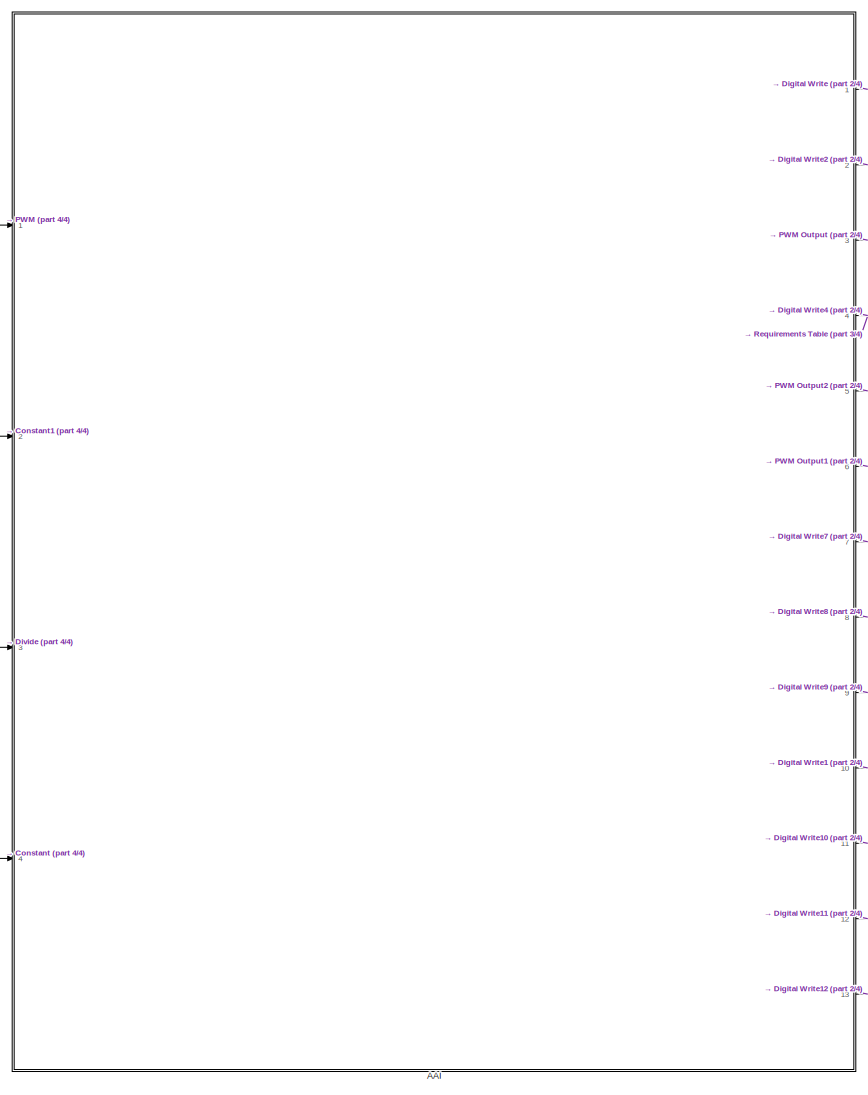
[diagram: root canvas - part 1/4, left side, full height]
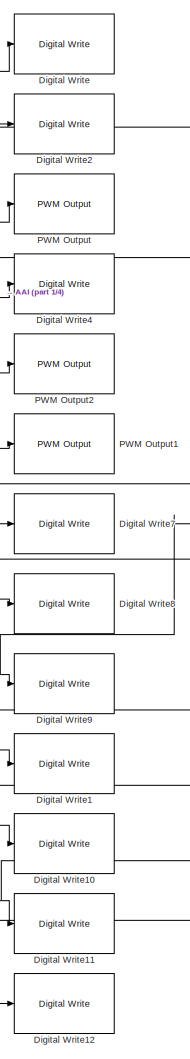
[diagram: root canvas - part 2/4, center side, full height]
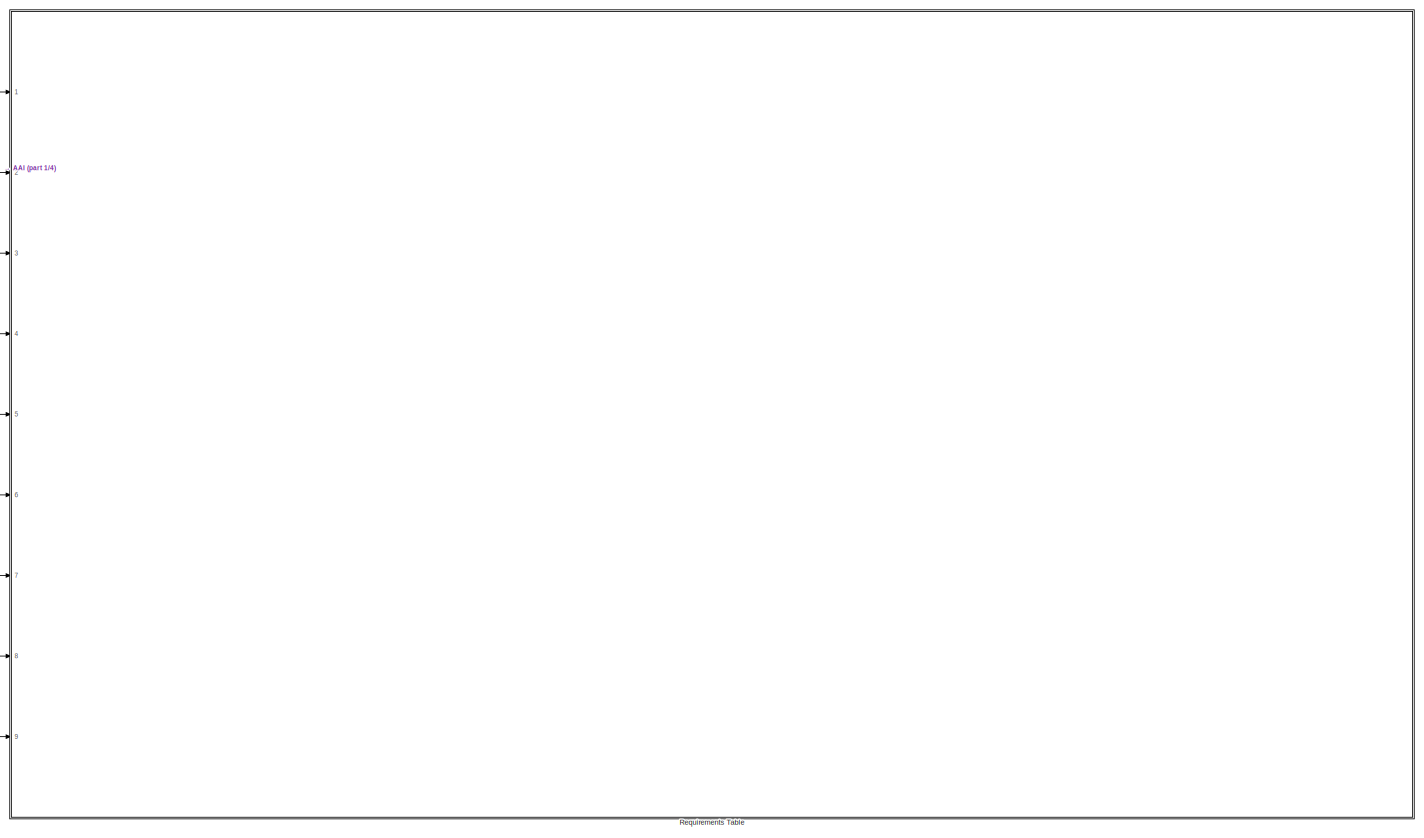
[diagram: root canvas - part 3/4, right side, full height]
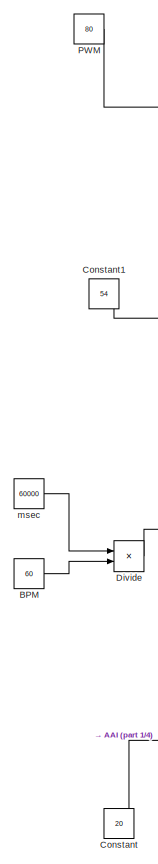
[diagram: root canvas - part 4/4, left side, full height]
MODEL slx_c05e6b1c98c2
KIND model
CONFIG AbsTol = auto
CONFIG EnableMultiTasking = on
CONFIG FixedStep = 1e-3
CONFIG MaxStep = auto
CONFIG MinStep = auto
CONFIG RelTol = 1e-3
CONFIG SampleTimeConstraint = Unconstrained
CONFIG SolverName = FixedStepAuto
CONFIG StartTime = 0.0
CONFIG StopTime = 10.0
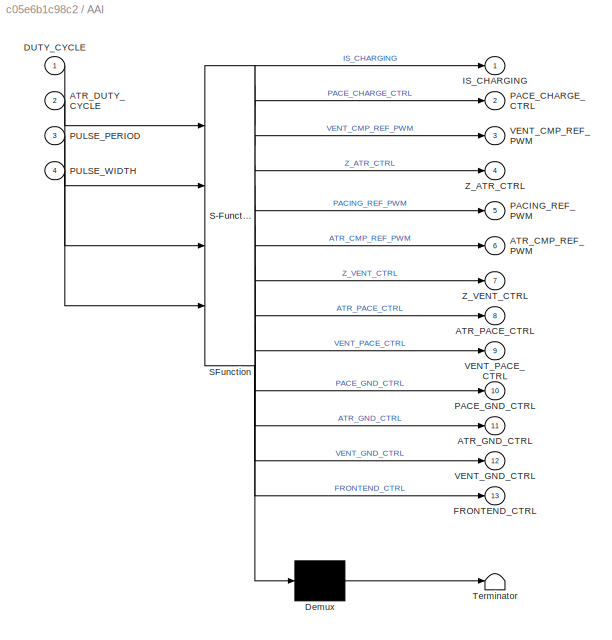
BLOCK [SubSystem] AAI
  ErrorFcn = Stateflow.Translate.translate
  PermitHierarchicalResolution = ExplicitOnly
  Ports = [4, 13]
  RequestExecContextInheritance = off
  SFBlockType = Chart
  TreatAsAtomicUnit = on
BLOCK [Demux] AAI/ Demux 
  Outputs = 1
  Ports = [1, 1]
BLOCK [S-Function] AAI/ SFunction 
  EnableBusSupport = on
  FunctionName = sf_sfun
  PortCounts = [4 14]
  Ports = [4, 14]
  SFcnIsStateOwnerBlock = off
  SFunctionDeploymentMode = off
  Tag = Stateflow S-Function 3
BLOCK [Terminator] AAI/ Terminator 
BLOCK [Outport] AAI/ATR_CMP_REF_PWM
  Port = 6
BLOCK [Inport] AAI/ATR_DUTY_CYCLE
  Port = 2
BLOCK [Outport] AAI/ATR_GND_CTRL
  Port = 11
BLOCK [Outport] AAI/ATR_PACE_CTRL
  Port = 8
BLOCK [Inport] AAI/DUTY_CYCLE
BLOCK [Outport] AAI/FRONTEND_CTRL
  Port = 13
BLOCK [Outport] AAI/IS_CHARGING
BLOCK [Outport] AAI/PACE_CHARGE_CTRL
  Port = 2
BLOCK [Outport] AAI/PACE_GND_CTRL
  Port = 10
BLOCK [Outport] AAI/PACING_REF_PWM
  Port = 5
BLOCK [Inport] AAI/PULSE_PERIOD
  Port = 3
BLOCK [Inport] AAI/PULSE_WIDTH
  Port = 4
BLOCK [Outport] AAI/VENT_CMP_REF_PWM
  Port = 3
BLOCK [Outport] AAI/VENT_GND_CTRL
  Port = 12
BLOCK [Outport] AAI/VENT_PACE_CTRL
  Port = 9
BLOCK [Outport] AAI/Z_ATR_CTRL
  Port = 4
BLOCK [Outport] AAI/Z_VENT_CTRL
  Port = 7
BLOCK [Constant] BPM
  Value = 60
BLOCK [Constant] Constant
  Value = 20
BLOCK [Constant] Constant1
  Value = 54
BLOCK [Reference] Digital Write  REF=frdmk64flib/Digital Write
  Ports = [1]
  SourceBlock = frdmk64flib/Digital Write
  SourceProductBaseCode = EC_FRDM_K64F
  SourceType = freedomk64f.DigitalWrite
BLOCK [Reference] Digital Write1  REF=frdmk64flib/Digital Write
  Ports = [1]
  SourceBlock = frdmk64flib/Digital Write
  SourceProductBaseCode = EC_FRDM_K64F
  SourceType = freedomk64f.DigitalWrite
BLOCK [Reference] Digital Write10  REF=frdmk64flib/Digital Write
  Ports = [1]
  SourceBlock = frdmk64flib/Digital Write
  SourceProductBaseCode = EC_FRDM_K64F
  SourceType = freedomk64f.DigitalWrite
BLOCK [Reference] Digital Write11  REF=frdmk64flib/Digital Write
  Ports = [1]
  SourceBlock = frdmk64flib/Digital Write
  SourceProductBaseCode = EC_FRDM_K64F
  SourceType = freedomk64f.DigitalWrite
BLOCK [Reference] Digital Write12  REF=frdmk64flib/Digital Write
  Ports = [1]
  SourceBlock = frdmk64flib/Digital Write
  SourceProductBaseCode = EC_FRDM_K64F
  SourceType = freedomk64f.DigitalWrite
BLOCK [Reference] Digital Write2  REF=frdmk64flib/Digital Write
  Ports = [1]
  SourceBlock = frdmk64flib/Digital Write
  SourceProductBaseCode = EC_FRDM_K64F
  SourceType = freedomk64f.DigitalWrite
BLOCK [Reference] Digital Write4  REF=frdmk64flib/Digital Write
  Ports = [1]
  SourceBlock = frdmk64flib/Digital Write
  SourceProductBaseCode = EC_FRDM_K64F
  SourceType = freedomk64f.DigitalWrite
BLOCK [Reference] Digital Write7  REF=frdmk64flib/Digital Write
  Ports = [1]
  SourceBlock = frdmk64flib/Digital Write
  SourceProductBaseCode = EC_FRDM_K64F
  SourceType = freedomk64f.DigitalWrite
BLOCK [Reference] Digital Write8  REF=frdmk64flib/Digital Write
  Ports = [1]
  SourceBlock = frdmk64flib/Digital Write
  SourceProductBaseCode = EC_FRDM_K64F
  SourceType = freedomk64f.DigitalWrite
BLOCK [Reference] Digital Write9  REF=frdmk64flib/Digital Write
  Ports = [1]
  SourceBlock = frdmk64flib/Digital Write
  SourceProductBaseCode = EC_FRDM_K64F
  SourceType = freedomk64f.DigitalWrite
BLOCK [Product] Divide
  Inputs = */
  Ports = [2, 1]
BLOCK [Constant] PWM
  Value = 80
BLOCK [Reference] PWM Output  REF=frdmk64flib/PWM Output
  Ports = [1]
  SourceBlock = frdmk64flib/PWM Output
  SourceProductBaseCode = EC_FRDM_K64F
  SourceType = freedomk64f.PWMOutput
BLOCK [Reference] PWM Output1  REF=frdmk64flib/PWM Output
  Ports = [1]
  SourceBlock = frdmk64flib/PWM Output
  SourceProductBaseCode = EC_FRDM_K64F
  SourceType = freedomk64f.PWMOutput
BLOCK [Reference] PWM Output2  REF=frdmk64flib/PWM Output
  Ports = [1]
  SourceBlock = frdmk64flib/PWM Output
  SourceProductBaseCode = EC_FRDM_K64F
  SourceType = freedomk64f.PWMOutput
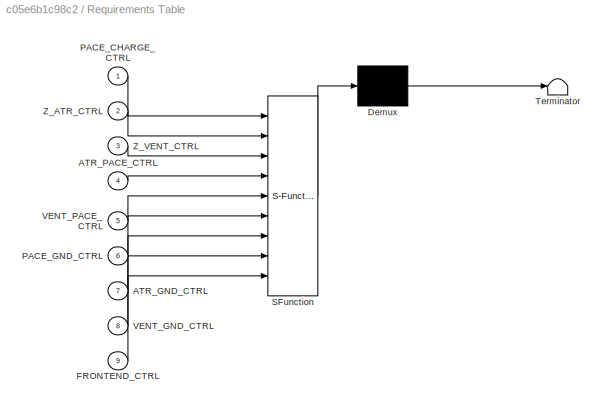
BLOCK [SubSystem] Requirements Table
  ErrorFcn = Stateflow.Translate.translate
  PermitHierarchicalResolution = ExplicitOnly
  Ports = [9]
  RequestExecContextInheritance = off
  SFBlockType = Requirements Table
  TreatAsAtomicUnit = on
BLOCK [Demux] Requirements Table/ Demux 
  Outputs = 1
  Ports = [1, 1]
BLOCK [S-Function] Requirements Table/ SFunction 
  EnableBusSupport = on
  FunctionName = sf_sfun
  PortCounts = [9 1]
  Ports = [9, 1]
  SFcnIsStateOwnerBlock = off
  SFunctionDeploymentMode = off
  Tag = Stateflow S-Function 1
BLOCK [Terminator] Requirements Table/ Terminator 
BLOCK [Inport] Requirements Table/ATR_GND_CTRL
  Port = 7
BLOCK [Inport] Requirements Table/ATR_PACE_CTRL
  Port = 4
BLOCK [Inport] Requirements Table/FRONTEND_CTRL
  Port = 9
BLOCK [Inport] Requirements Table/PACE_CHARGE_CTRL
BLOCK [Inport] Requirements Table/PACE_GND_CTRL
  Port = 6
BLOCK [Inport] Requirements Table/VENT_GND_CTRL
  Port = 8
BLOCK [Inport] Requirements Table/VENT_PACE_CTRL
  Port = 5
BLOCK [Inport] Requirements Table/Z_ATR_CTRL
  Port = 2
BLOCK [Inport] Requirements Table/Z_VENT_CTRL
  Port = 3
BLOCK [Constant] msec
  Value = 60000
LINE AAI:1 -> Digital Write:1
NET AAI:10 -> Digital Write1:1, Requirements Table:6
NET AAI:11 -> Digital Write10:1, Requirements Table:7
NET AAI:12 -> Digital Write11:1, Requirements Table:8
NET AAI:13 -> Digital Write12:1, Requirements Table:9
NET AAI:2 -> Digital Write2:1, Requirements Table:1
LINE AAI:3 -> PWM Output:1
NET AAI:4 -> Digital Write4:1, Requirements Table:2
LINE AAI:5 -> PWM Output2:1
LINE AAI:6 -> PWM Output1:1
NET AAI:7 -> Digital Write7:1, Requirements Table:3
NET AAI:8 -> Digital Write8:1, Requirements Table:4
NET AAI:9 -> Digital Write9:1, Requirements Table:5
LINE BPM:1 -> Divide:2
LINE Constant1:1 -> AAI:2
LINE Constant:1 -> AAI:4
LINE Divide:1 -> AAI:3
LINE PWM:1 -> AAI:1
LINE msec:1 -> Divide:1
note: NET lines group one-source signal fan-out (src -> all destinations, sorted); 1:1 wires keep LINE
CHART Requirements Table states=0 transitions=33
CHART AAI states=2 transitions=3
  STATE_LABEL 'Charging_C22\nentry:\nPACING_REF_PWM = DUTY_CYCLE\nPACE_CHARGE_CTRL = true\nPACE_GND_CTRL = true\nATR_PACE_CTRL = false\nZ_ATR_CTRL = false\nZ_VENT_CTRL = false\nVENT_PACE_CTRL = false\nVENT_GND_CTRL = false\nATR_GND_CTRL = true\n% For LED testing\nIS_CHARGING = true\nATR_CMP_REF_PWM = ATR_DUTY_CYCLE\n'
  STATE_LABEL 'Pacing\nentry:\nPACE_CHARGE_CTRL = false\nPACE_GND_CTRL = true\nVENT_PACE_CTRL = false\nVENT_GND_CTRL = false\nZ_ATR_CTRL = false\nZ_VENT_CTRL = false\nATR_GND_CTRL = false\nATR_PACE_CTRL = true\n% For LED testing\nIS_CHARGING = false'
CHART  states=0 transitions=0
CHART  states=0 transitions=0
